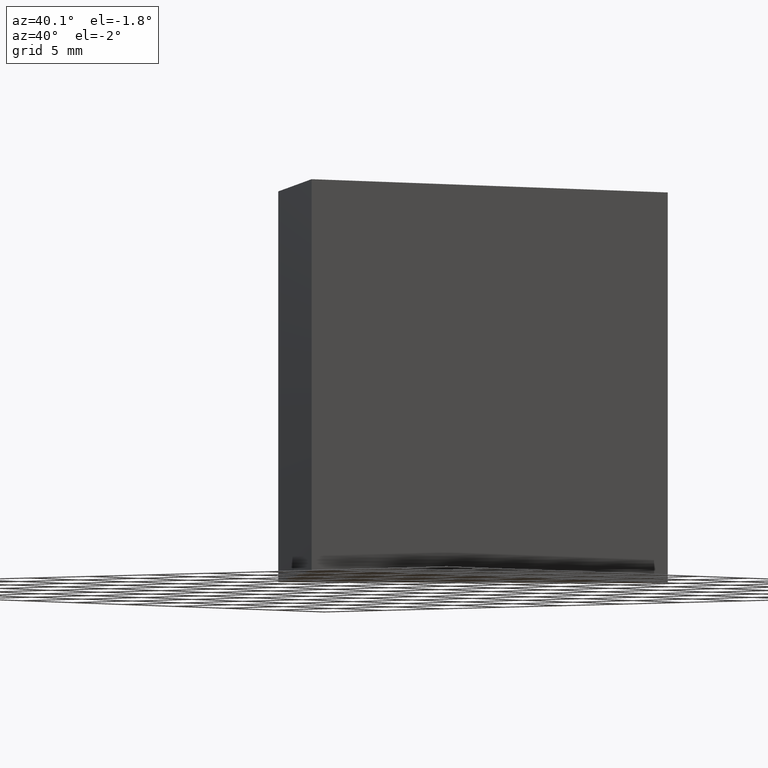
[diagram: clean part render]
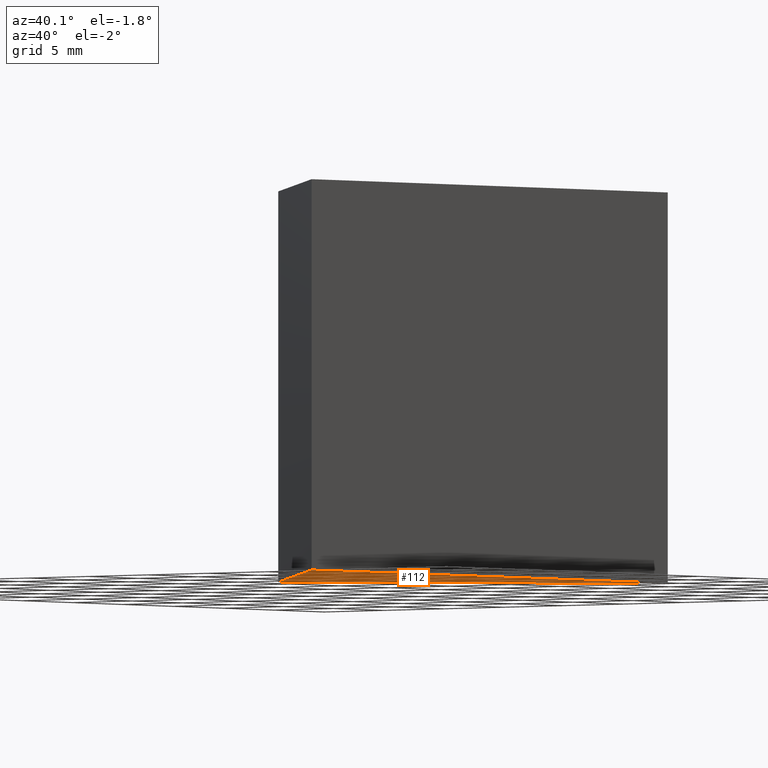
[diagram: same view with one face highlighted and labeled with its STEP entity id]
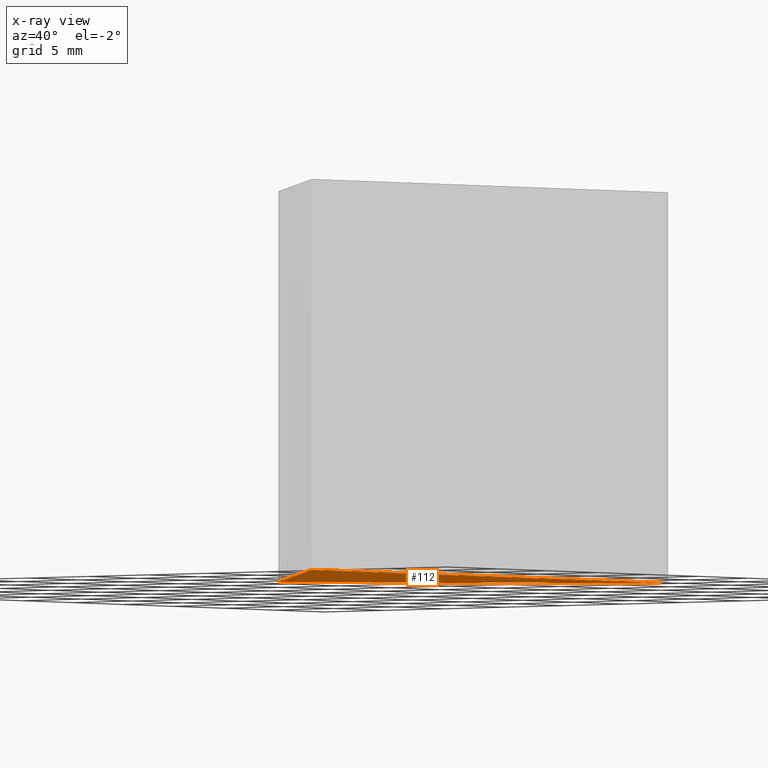
[diagram: x-ray of the same camera — body ghosted, the highlighted face saturated]
A machine part, auxiliary view. The second image highlights one B-rep face of the part: STEP entity #112.
The next image is the same camera in x-ray: the body ghosted, the highlighted face saturated — about 0% of this face is hidden behind the body in this view.
In plain terms, the highlighted planar face has unit normal (-0, 0, 1).
Its self-contained STEP definition (entity closure, byte-faithful):
#1 = CARTESIAN_POINT ( 'NONE',  ( 277.3833497629746000, 68.87846276417030800, 0.0000000000000000000 ) ) ;
#3 = DIRECTION ( 'NONE',  ( 0.7071067811865465700, -0.7071067811865484600, 0.0000000000000000000 ) ) ;
#6 = ORIENTED_EDGE ( 'NONE', *, *, #159, .F. ) ;
#18 = DIRECTION ( 'NONE',  ( 1.000000000000000000, 0.0000000000000000000, 0.0000000000000000000 ) ) ;
#23 = VERTEX_POINT ( 'NONE', #31 ) ;
#25 = ORIENTED_EDGE ( 'NONE', *, *, #104, .F. ) ;
#31 = CARTESIAN_POINT ( 'NONE',  ( 295.0610192926383200, 86.55613229383399700, 0.0000000000000000000 ) ) ;
#46 = CARTESIAN_POINT ( 'NONE',  ( 277.3833497629746000, 68.87846276417030800, 0.0000000000000000000 ) ) ;
#47 = DIRECTION ( 'NONE',  ( -0.7071067811865481300, -0.7071067811865470200, -0.0000000000000000000 ) ) ;
#73 = AXIS2_PLACEMENT_3D ( 'NONE', #83, #128, #18 ) ;
#83 = CARTESIAN_POINT ( 'NONE',  ( 0.0000000000000000000, 0.0000000000000000000, 0.0000000000000000000 ) ) ;
#92 = LINE ( 'NONE', #131, #103 ) ;
#93 = LINE ( 'NONE', #1, #158 ) ;
#101 = ORIENTED_EDGE ( 'NONE', *, *, #145, .F. ) ;
#102 = VERTEX_POINT ( 'NONE', #46 ) ;
#103 = VECTOR ( 'NONE', #47, 1000.000000000000000 ) ;
#104 = EDGE_CURVE ( 'NONE', #169, #23, #155, .T. ) ;
#106 = CARTESIAN_POINT ( 'NONE',  ( 295.0610192926382600, 51.20079323450661200, 0.0000000000000000000 ) ) ;
#107 = DIRECTION ( 'NONE',  ( 1.570092458683774700E-015, 1.000000000000000000, 0.0000000000000000000 ) ) ;
#112 = ADVANCED_FACE ( 'NONE', ( #163 ), #118, .F. ) ;
#118 = PLANE ( 'NONE',  #73 ) ;
#123 = CARTESIAN_POINT ( 'NONE',  ( 295.0610192926382600, 51.20079323450661200, 0.0000000000000000000 ) ) ;
#124 = VECTOR ( 'NONE', #107, 1000.000000000000000 ) ;
#127 = EDGE_LOOP ( 'NONE', ( #101, #6, #25 ) ) ;
#128 = DIRECTION ( 'NONE',  ( -0.0000000000000000000, 0.0000000000000000000, 1.000000000000000000 ) ) ;
#131 = CARTESIAN_POINT ( 'NONE',  ( 277.3833497629746000, 68.87846276417030800, 0.0000000000000000000 ) ) ;
#145 = EDGE_CURVE ( 'NONE', #102, #169, #93, .T. ) ;
#155 = LINE ( 'NONE', #106, #124 ) ;
#158 = VECTOR ( 'NONE', #3, 1000.000000000000100 ) ;
#159 = EDGE_CURVE ( 'NONE', #23, #102, #92, .T. ) ;
#163 = FACE_OUTER_BOUND ( 'NONE', #127, .T. ) ;
#169 = VERTEX_POINT ( 'NONE', #123 ) ;